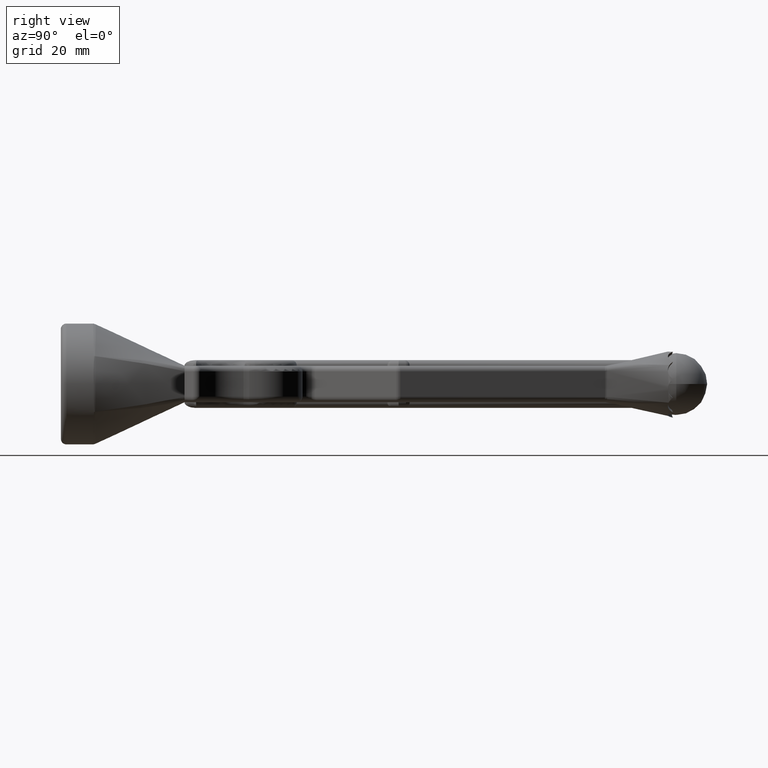
[diagram: clean part render]
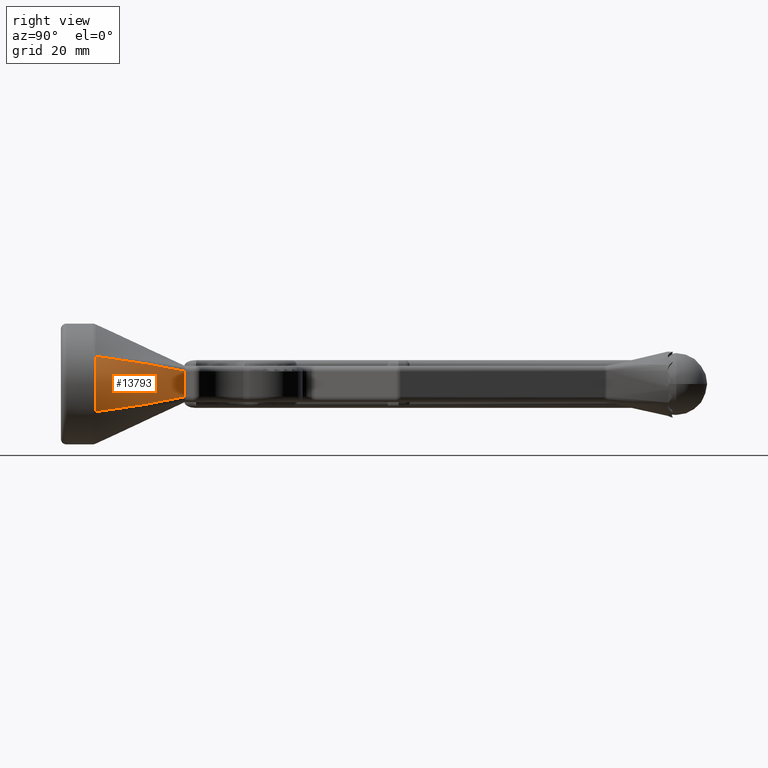
[diagram: same view with one face highlighted and labeled with its STEP entity id]
A machine part, right view. The second image highlights one B-rep face of the part: STEP entity #13793.
In plain terms, the highlighted face is a freeform B-spline surface patch.
Its self-contained STEP definition (entity closure, byte-faithful):
#11 = CARTESIAN_POINT ( 'NONE',  ( 6.250000000000019500, 21.99999999999998600, -2.708333333333331700 ) ) ;
#320 = VERTEX_POINT ( 'NONE', #7174 ) ;
#610 = ORIENTED_EDGE ( 'NONE', *, *, #13381, .T. ) ;
#1002 = CARTESIAN_POINT ( 'NONE',  ( 10.58760743880969500, 6.129520815898116500, 1.695288023694556000 ) ) ;
#1076 = CARTESIAN_POINT ( 'NONE',  ( 9.886855223470432100, 6.117145032861022200, 4.167744062603573800 ) ) ;
#1262 = CARTESIAN_POINT ( 'NONE',  ( 10.68609714204955500, 6.131309588848192300, -0.8685718863071608700 ) ) ;
#1407 = CARTESIAN_POINT ( 'NONE',  ( 10.74999999999999800, 5.999999999999999100, -0.8759887250644964300 ) ) ;
#1454 = CARTESIAN_POINT ( 'NONE',  ( 9.516217409836654500, 6.111375290242550700, 4.944699640526629900 ) ) ;
#1605 = CARTESIAN_POINT ( 'NONE',  ( 6.250000000000020400, 21.99999999999998900, 2.258948794844910500 ) ) ;
#1830 = ORIENTED_EDGE ( 'NONE', *, *, #6741, .T. ) ;
#1911 = CARTESIAN_POINT ( 'NONE',  ( 9.004239875562360500, 8.780464470005600900, -4.588637715759017700 ) ) ;
#2294 = B_SPLINE_CURVE_WITH_KNOTS ( 'NONE', 3,
 ( #3602, #1911, #10011, #19545, #10074, #6763 ),
 .UNSPECIFIED., .F., .F.,
 ( 4, 2, 4 ),
 ( 0.0000000000000000000, 0.008222921814681281900, 0.01644584362936257100 ),
 .UNSPECIFIED. ) ;
#2596 = CARTESIAN_POINT ( 'NONE',  ( 9.886935248134044200, 6.117144897352576800, -4.167720801240369300 ) ) ;
#2616 = CARTESIAN_POINT ( 'NONE',  ( 10.74999999999999800, 6.000000000000000900, 0.8759887250644969900 ) ) ;
#2655 = CARTESIAN_POINT ( 'NONE',  ( 10.50980102577933400, 6.129165924848168200, -2.128333276448107100 ) ) ;
#2730 = CARTESIAN_POINT ( 'NONE',  ( 10.31072511759759500, 6.125830511274466900, 2.953412409948422900 ) ) ;
#3000 = B_SPLINE_CURVE_WITH_KNOTS ( 'NONE', 3,
 ( #12209, #15320, #1076, #16953, #2730, #15199, #1002, #12278, #18347, #5719, #1262, #4150, #2655, #10476, #12070, #2596, #5793, #4217 ),
 .UNSPECIFIED., .F., .F.,
 ( 4, 2, 2, 2, 2, 2, 2, 2, 4 ),
 ( 1.734723475976807100E-018, 0.001291874169814170900, 0.002583748339628340100, 0.003875622509442509900, 0.005167496679256678400, 0.006459370849070847400, 0.007751245018885018000, 0.009043119188699187000, 0.01033499335851335300 ),
 .UNSPECIFIED. ) ;
#3060 = VERTEX_POINT ( 'NONE', #8422 ) ;
#3602 = CARTESIAN_POINT ( 'NONE',  ( 9.516217409836418300, 6.111375290242545300, -4.944699640527073100 ) ) ;
#3842 = B_SPLINE_CURVE_WITH_KNOTS ( 'NONE', 3,
 ( #4643, #17067, #12317, #6026 ),
 .UNSPECIFIED., .F., .F.,
 ( 4, 4 ),
 ( 0.0000000000000000000, 2.684638453473724700E-005 ),
 .UNSPECIFIED. ) ;
#4150 = CARTESIAN_POINT ( 'NONE',  ( 10.58491988748380100, 6.129492707924220500, -1.711402722229843800 ) ) ;
#4217 = CARTESIAN_POINT ( 'NONE',  ( 9.516217409836418300, 6.111375290242545300, -4.944699640527073100 ) ) ;
#4365 = CARTESIAN_POINT ( 'NONE',  ( 6.250000000000019500, 21.99999999999998600, 0.5416666666666678500 ) ) ;
#4494 = CARTESIAN_POINT ( 'NONE',  ( 6.250000000000019500, 21.99999999999998600, -2.166666666666664700 ) ) ;
#4506 = CARTESIAN_POINT ( 'NONE',  ( 9.516217409836418300, 6.111375290242545300, -4.944699640527073100 ) ) ;
#4626 = CARTESIAN_POINT ( 'NONE',  ( 6.210243780662422000, 22.15999999999998600, -2.154063686581888100 ) ) ;
#4643 = CARTESIAN_POINT ( 'NONE',  ( 6.249876593798525400, 22.00050795162261600, -2.276841295025489500 ) ) ;
#5127 = DIRECTION ( 'NONE',  ( -0.0000000000000000000, -0.0000000000000000000, -1.000000000000000000 ) ) ;
#5512 = EDGE_CURVE ( 'NONE', #19052, #3060, #5917, .T. ) ;
#5719 = CARTESIAN_POINT ( 'NONE',  ( 10.71216339895475400, 6.132763207407093000, -0.4426729159925972300 ) ) ;
#5793 = CARTESIAN_POINT ( 'NONE',  ( 9.713236545455119500, 6.114995378451188100, -4.561737729099800000 ) ) ;
#5866 = CARTESIAN_POINT ( 'NONE',  ( 10.64139727341158300, 6.000000000000000900, 1.751597809516993300 ) ) ;
#5917 = LINE ( 'NONE', #11001, #16295 ) ;
#6026 = CARTESIAN_POINT ( 'NONE',  ( 6.250000000000020400, 21.99999999999998900, -2.249999999999998200 ) ) ;
#6067 = CARTESIAN_POINT ( 'NONE',  ( 6.250000000000019500, 21.99999999999998600, -1.083333333333331500 ) ) ;
#6121 = CARTESIAN_POINT ( 'NONE',  ( 10.64139727341158100, 6.000000000000000900, -1.751597809516993300 ) ) ;
#6190 = CARTESIAN_POINT ( 'NONE',  ( 6.250000000000020400, 21.99999999999998900, -3.249999999999998200 ) ) ;
#6324 = B_SPLINE_CURVE_WITH_KNOTS ( 'NONE', 3,
 ( #18946, #1605, #11079, #9305 ),
 .UNSPECIFIED., .F., .F.,
 ( 4, 4 ),
 ( 4.336808689942017700E-019, 2.684638453473197500E-005 ),
 .UNSPECIFIED. ) ;
#6741 = EDGE_CURVE ( 'NONE', #9127, #18441, #3000, .T. ) ;
#6763 = CARTESIAN_POINT ( 'NONE',  ( 6.249876593798525400, 22.00050795162261600, -2.276841295025489500 ) ) ;
#6861 = ORIENTED_EDGE ( 'NONE', *, *, #19594, .T. ) ;
#7174 = CARTESIAN_POINT ( 'NONE',  ( 6.249876593798525400, 22.00050795162261600, 2.276841295025486400 ) ) ;
#7582 = CARTESIAN_POINT ( 'NONE',  ( 6.250000000000019500, 21.99999999999998600, 2.708333333333333500 ) ) ;
#7699 = CARTESIAN_POINT ( 'NONE',  ( 9.004239902464908200, 8.780464329714446200, 4.588637734488989000 ) ) ;
#7974 = FACE_OUTER_BOUND ( 'NONE', #15174, .T. ) ;
#8297 = EDGE_CURVE ( 'NONE', #320, #9127, #20477, .T. ) ;
#8422 = CARTESIAN_POINT ( 'NONE',  ( 6.250000000000020400, 21.99999999999998900, -2.249999999999998200 ) ) ;
#8923 = CARTESIAN_POINT ( 'NONE',  ( 10.22562193375976700, 6.000000000000000900, 3.426964675144367000 ) ) ;
#9089 = CARTESIAN_POINT ( 'NONE',  ( 8.494584941355903100, 11.44659048277762800, 4.207412129523930800 ) ) ;
#9111 = CARTESIAN_POINT ( 'NONE',  ( 6.217124193867301900, 22.15999999999998900, 3.232904580810986000 ) ) ;
#9126 = B_SPLINE_SURFACE_WITH_KNOTS ( 'NONE', 3, 1, ( 
 ( #15339, #10622, #9111 ),
 ( #20218, #7582, #16784 ),
 ( #8923, #10557, #19962 ),
 ( #5866, #13806, #12093 ),
 ( #2616, #4365, #15657 ),
 ( #1407, #14069, #17108 ),
 ( #6121, #6067, #14132 ),
 ( #18755, #4494, #4626 ),
 ( #11084, #11, #10825 ),
 ( #14005, #6190, #15786 ) ),
 .UNSPECIFIED., .F., .F., .F.,
 ( 4, 2, 2, 2, 4 ),
 ( 2, 1, 2 ),
 ( 0.0000000000000000000, 0.2500000000000000000, 0.5000000000000000000, 0.7500000000000000000, 1.000000000000000000 ),
 ( 0.0000000000000000000, 1.000000000000000000, 1.010000000000000000 ),
 .UNSPECIFIED. ) ;
#9127 = VERTEX_POINT ( 'NONE', #17116 ) ;
#9228 = CARTESIAN_POINT ( 'NONE',  ( 6.249876593798525400, 22.00050795162261600, 2.276841295025486400 ) ) ;
#9305 = CARTESIAN_POINT ( 'NONE',  ( 6.249876593798525400, 22.00050795162261600, 2.276841295025486400 ) ) ;
#10011 = CARTESIAN_POINT ( 'NONE',  ( 8.494584269903075600, 11.44659392797767000, -4.207411601897312000 ) ) ;
#10074 = CARTESIAN_POINT ( 'NONE',  ( 6.882626954925330900, 19.39607234506643600, -2.852202172637283700 ) ) ;
#10476 = CARTESIAN_POINT ( 'NONE',  ( 10.31053423322818600, 6.125815204030182300, -2.953216956301211800 ) ) ;
#10557 = CARTESIAN_POINT ( 'NONE',  ( 6.250000000000019500, 21.99999999999998600, 2.166666666666667400 ) ) ;
#10622 = CARTESIAN_POINT ( 'NONE',  ( 6.250000000000020400, 21.99999999999998900, 3.250000000000000000 ) ) ;
#10825 = CARTESIAN_POINT ( 'NONE',  ( 6.213310696806007400, 22.15999999999998600, -2.693154895672445800 ) ) ;
#11001 = CARTESIAN_POINT ( 'NONE',  ( 6.250000000000020400, 21.99999999999998900, 3.250000000000000000 ) ) ;
#11079 = CARTESIAN_POINT ( 'NONE',  ( 6.249958725840786900, 22.00016927538252900, 2.267899288432537700 ) ) ;
#11084 = CARTESIAN_POINT ( 'NONE',  ( 9.918930319401203700, 6.000000000000000900, -4.226177099421947000 ) ) ;
#12070 = CARTESIAN_POINT ( 'NONE',  ( 10.18639122371841000, 6.122666698615994100, -3.361170548290444100 ) ) ;
#12093 = CARTESIAN_POINT ( 'NONE',  ( 6.206086027265903300, 22.15999999999998600, 1.076650688571497700 ) ) ;
#12209 = CARTESIAN_POINT ( 'NONE',  ( 9.516217409836654500, 6.111375290242550700, 4.944699640526629900 ) ) ;
#12278 = CARTESIAN_POINT ( 'NONE',  ( 10.68799088214968100, 6.131364683464648900, 0.8462325941954168500 ) ) ;
#12317 = CARTESIAN_POINT ( 'NONE',  ( 6.250000000000020400, 21.99999999999998600, -2.258948794844911800 ) ) ;
#12993 = ORIENTED_EDGE ( 'NONE', *, *, #8297, .T. ) ;
#13310 = VERTEX_POINT ( 'NONE', #13833 ) ;
#13381 = EDGE_CURVE ( 'NONE', #13310, #3060, #3842, .T. ) ;
#13440 = ORIENTED_EDGE ( 'NONE', *, *, #5512, .F. ) ;
#13531 = CARTESIAN_POINT ( 'NONE',  ( 6.250000000000020400, 21.99999999999998900, 2.250000000000000400 ) ) ;
#13651 = EDGE_CURVE ( 'NONE', #18441, #13310, #2294, .T. ) ;
#13793 = ADVANCED_FACE ( 'NONE', ( #7974 ), #9126, .T. ) ;
#13806 = CARTESIAN_POINT ( 'NONE',  ( 6.250000000000019500, 21.99999999999998600, 1.083333333333334400 ) ) ;
#13833 = CARTESIAN_POINT ( 'NONE',  ( 6.249876593798525400, 22.00050795162261600, -2.276841295025489500 ) ) ;
#14005 = CARTESIAN_POINT ( 'NONE',  ( 9.537580613271904500, 6.000000000000000000, -4.959541918901373400 ) ) ;
#14069 = CARTESIAN_POINT ( 'NONE',  ( 6.250000000000019500, 21.99999999999998600, -0.5416666666666649600 ) ) ;
#14132 = CARTESIAN_POINT ( 'NONE',  ( 6.206086027265903300, 22.15999999999998600, -1.076650688571494800 ) ) ;
#15174 = EDGE_LOOP ( 'NONE', ( #1830, #17087, #610, #13440, #6861, #12993 ) ) ;
#15199 = CARTESIAN_POINT ( 'NONE',  ( 10.51235769472694600, 6.129196652187952800, 2.116750559050089000 ) ) ;
#15320 = CARTESIAN_POINT ( 'NONE',  ( 9.713233254435113700, 6.114995317980557800, 4.561744126120068200 ) ) ;
#15339 = CARTESIAN_POINT ( 'NONE',  ( 9.537580613271904500, 6.000000000000000000, 4.959541918901374300 ) ) ;
#15567 = CARTESIAN_POINT ( 'NONE',  ( 7.433800487863750900, 16.75443914804031900, 3.338730255428737700 ) ) ;
#15657 = CARTESIAN_POINT ( 'NONE',  ( 6.205000000000019600, 22.15999999999998600, 0.5383234460826895600 ) ) ;
#15786 = CARTESIAN_POINT ( 'NONE',  ( 6.217124193867301900, 22.15999999999998900, -3.232904580810984200 ) ) ;
#16295 = VECTOR ( 'NONE', #5127, 1000.000000000000000 ) ;
#16784 = CARTESIAN_POINT ( 'NONE',  ( 6.213310696806007400, 22.15999999999998600, 2.693154895672447100 ) ) ;
#16953 = CARTESIAN_POINT ( 'NONE',  ( 10.18529961643549200, 6.122644965180700900, 3.364302189401687600 ) ) ;
#17067 = CARTESIAN_POINT ( 'NONE',  ( 6.249958725840786900, 22.00016927538252900, -2.267899288432540000 ) ) ;
#17087 = ORIENTED_EDGE ( 'NONE', *, *, #13651, .T. ) ;
#17108 = CARTESIAN_POINT ( 'NONE',  ( 6.205000000000019600, 22.15999999999998600, -0.5383234460826866700 ) ) ;
#17116 = CARTESIAN_POINT ( 'NONE',  ( 9.516217409836654500, 6.111375290242550700, 4.944699640526629900 ) ) ;
#18347 = CARTESIAN_POINT ( 'NONE',  ( 10.71312498263372800, 6.132829177796777400, 0.4184947285091728000 ) ) ;
#18441 = VERTEX_POINT ( 'NONE', #4506 ) ;
#18538 = CARTESIAN_POINT ( 'NONE',  ( 6.882627159727559500, 19.39607150208913900, 2.852202358864251300 ) ) ;
#18755 = CARTESIAN_POINT ( 'NONE',  ( 10.22562193375977000, 6.000000000000000900, -3.426964675144366500 ) ) ;
#18946 = CARTESIAN_POINT ( 'NONE',  ( 6.250000000000020400, 21.99999999999998900, 2.250000000000000400 ) ) ;
#19052 = VERTEX_POINT ( 'NONE', #13531 ) ;
#19545 = CARTESIAN_POINT ( 'NONE',  ( 7.433800129289330100, 16.75444085678899600, -3.338729939560675800 ) ) ;
#19594 = EDGE_CURVE ( 'NONE', #19052, #320, #6324, .T. ) ;
#19962 = CARTESIAN_POINT ( 'NONE',  ( 6.210243780662422000, 22.15999999999998600, 2.154063686581890700 ) ) ;
#20218 = CARTESIAN_POINT ( 'NONE',  ( 9.918930319401205500, 5.999999999999999100, 4.226177099421946100 ) ) ;
#20477 = B_SPLINE_CURVE_WITH_KNOTS ( 'NONE', 3,
 ( #9228, #18538, #15567, #9089, #7699, #1454 ),
 .UNSPECIFIED., .F., .F.,
 ( 4, 2, 4 ),
 ( -5.345257285717609700E-007, 0.008221545874533600300, 0.01644362627479577200 ),
 .UNSPECIFIED. ) ;